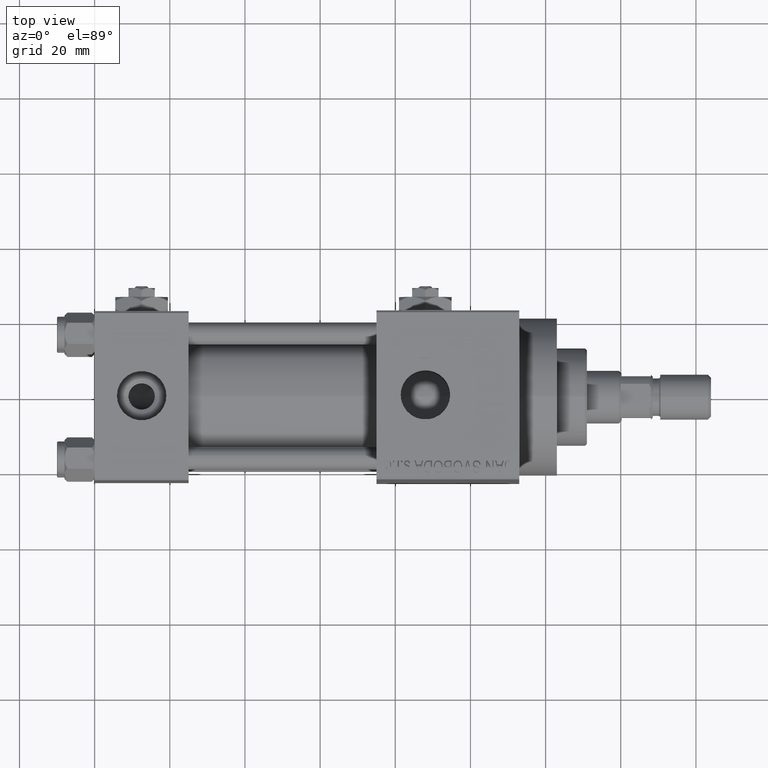
[diagram: clean part render]
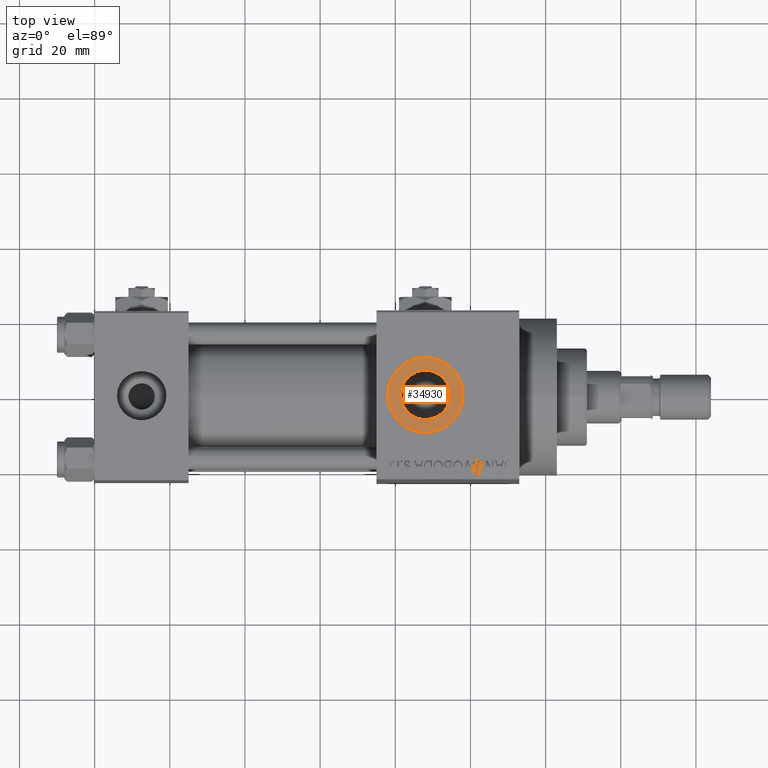
[diagram: same view with one face highlighted and labeled with its STEP entity id]
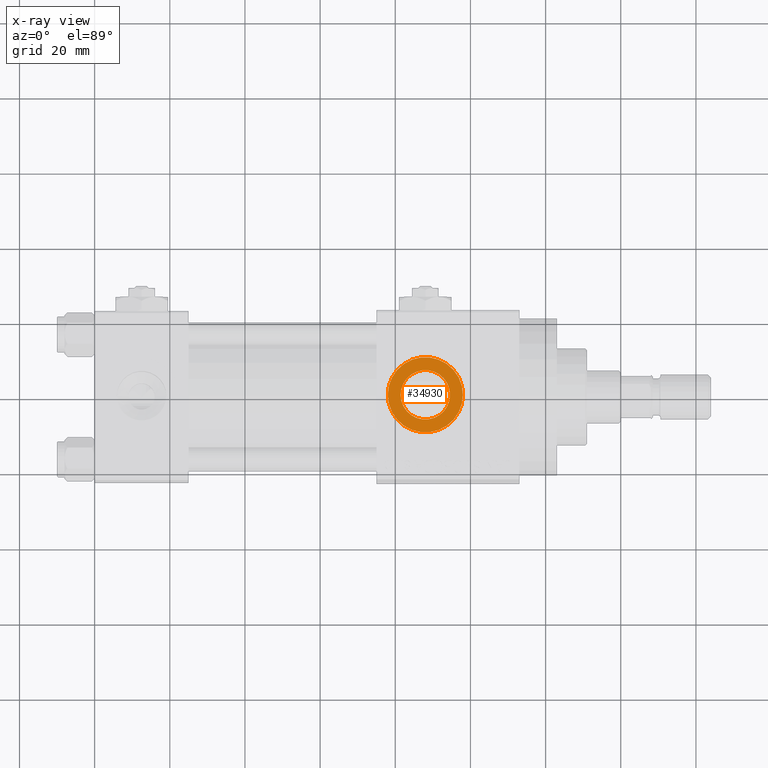
[diagram: x-ray of the same camera — body ghosted, the highlighted face saturated]
A machine part, top view. The second image highlights one B-rep face of the part: STEP entity #34930.
The next image is the same camera in x-ray: the body ghosted, the highlighted face saturated — about 0% of this face is hidden behind the body in this view.
In plain terms, the highlighted planar face has unit normal (0, 0, 1).
Its self-contained STEP definition (entity closure, byte-faithful):
#2543 = CARTESIAN_POINT ( 'NONE',  ( 78.00000000000000000, 1.224646799147354440E-15, 34.80000000000000426 ) ) ;
#3193 = CARTESIAN_POINT ( 'NONE',  ( 88.00000000000001421, 0.000000000000000000, 34.80000000000000426 ) ) ;
#3490 = CIRCLE ( 'NONE', #5077, 10.00000000000000888 ) ;
#3932 = DIRECTION ( 'NONE',  ( 1.000000000000000000, 0.000000000000000000, 0.000000000000000000 ) ) ;
#5077 = AXIS2_PLACEMENT_3D ( 'NONE', #18499, #46038, #3932 ) ;
#6724 = DIRECTION ( 'NONE',  ( 0.000000000000000000, 0.000000000000000000, 1.000000000000000000 ) ) ;
#7582 = AXIS2_PLACEMENT_3D ( 'NONE', #3193, #6724, #29272 ) ;
#7725 = PLANE ( 'NONE',  #20026 ) ;
#10757 = FACE_OUTER_BOUND ( 'NONE', #41849, .T. ) ;
#11098 = VERTEX_POINT ( 'NONE', #26364 ) ;
#11182 = DIRECTION ( 'NONE',  ( -0.000000000000000000, -0.000000000000000000, -1.000000000000000000 ) ) ;
#14386 = ORIENTED_EDGE ( 'NONE', *, *, #23346, .T. ) ;
#14526 = DIRECTION ( 'NONE',  ( 0.000000000000000000, 0.000000000000000000, 1.000000000000000000 ) ) ;
#16398 = DIRECTION ( 'NONE',  ( 1.000000000000000000, 0.000000000000000000, 0.000000000000000000 ) ) ;
#18499 = CARTESIAN_POINT ( 'NONE',  ( 88.00000000000001421, 0.000000000000000000, 34.80000000000000426 ) ) ;
#20026 = AXIS2_PLACEMENT_3D ( 'NONE', #48845, #14526, #37547 ) ;
#23346 = EDGE_CURVE ( 'NONE', #26820, #42315, #45175, .T. ) ;
#24342 = EDGE_LOOP ( 'NONE', ( #46337, #49261 ) ) ;
#24640 = DIRECTION ( 'NONE',  ( -0.000000000000000000, -0.000000000000000000, -1.000000000000000000 ) ) ;
#24809 = EDGE_CURVE ( 'NONE', #11098, #49373, #41124, .T. ) ;
#25914 = AXIS2_PLACEMENT_3D ( 'NONE', #46949, #24640, #16398 ) ;
#26364 = CARTESIAN_POINT ( 'NONE',  ( 94.58000000000001251, 8.058175938389587461E-16, 34.80000000000000426 ) ) ;
#26820 = VERTEX_POINT ( 'NONE', #30552 ) ;
#27992 = AXIS2_PLACEMENT_3D ( 'NONE', #41249, #11182, #45265 ) ;
#29272 = DIRECTION ( 'NONE',  ( 1.000000000000000000, 0.000000000000000000, 0.000000000000000000 ) ) ;
#30552 = CARTESIAN_POINT ( 'NONE',  ( 98.00000000000001421, 0.000000000000000000, 34.80000000000000426 ) ) ;
#33675 = ORIENTED_EDGE ( 'NONE', *, *, #46175, .T. ) ;
#34930 = ADVANCED_FACE ( 'NONE', ( #46068, #10757 ), #7725, .T. ) ;
#35258 = EDGE_CURVE ( 'NONE', #49373, #11098, #37621, .T. ) ;
#37547 = DIRECTION ( 'NONE',  ( 1.000000000000000000, 0.000000000000000000, -0.000000000000000000 ) ) ;
#37621 = CIRCLE ( 'NONE', #27992, 6.580000000000002736 ) ;
#40199 = CARTESIAN_POINT ( 'NONE',  ( 81.42000000000000171, 0.000000000000000000, 34.80000000000000426 ) ) ;
#41124 = CIRCLE ( 'NONE', #25914, 6.580000000000002736 ) ;
#41249 = CARTESIAN_POINT ( 'NONE',  ( 88.00000000000001421, 0.000000000000000000, 34.80000000000000426 ) ) ;
#41849 = EDGE_LOOP ( 'NONE', ( #14386, #33675 ) ) ;
#42315 = VERTEX_POINT ( 'NONE', #2543 ) ;
#45175 = CIRCLE ( 'NONE', #7582, 10.00000000000000888 ) ;
#45265 = DIRECTION ( 'NONE',  ( 1.000000000000000000, 0.000000000000000000, 0.000000000000000000 ) ) ;
#46038 = DIRECTION ( 'NONE',  ( 0.000000000000000000, 0.000000000000000000, 1.000000000000000000 ) ) ;
#46068 = FACE_BOUND ( 'NONE', #24342, .T. ) ;
#46175 = EDGE_CURVE ( 'NONE', #42315, #26820, #3490, .T. ) ;
#46337 = ORIENTED_EDGE ( 'NONE', *, *, #35258, .T. ) ;
#46949 = CARTESIAN_POINT ( 'NONE',  ( 88.00000000000001421, 0.000000000000000000, 34.80000000000000426 ) ) ;
#48845 = CARTESIAN_POINT ( 'NONE',  ( 88.00000000000001421, 0.000000000000000000, 34.80000000000000426 ) ) ;
#49261 = ORIENTED_EDGE ( 'NONE', *, *, #24809, .T. ) ;
#49373 = VERTEX_POINT ( 'NONE', #40199 ) ;